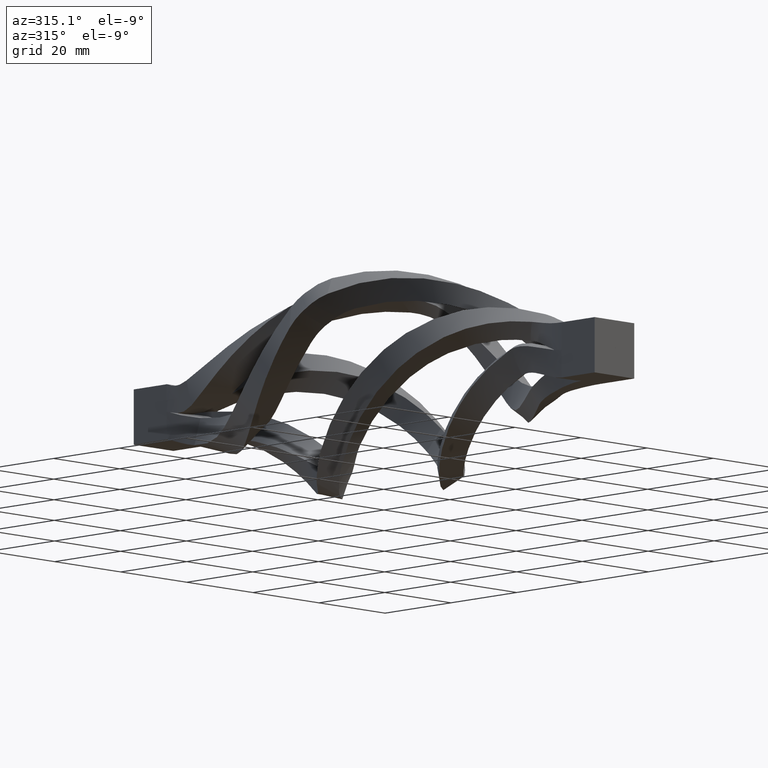
[diagram: clean part render]
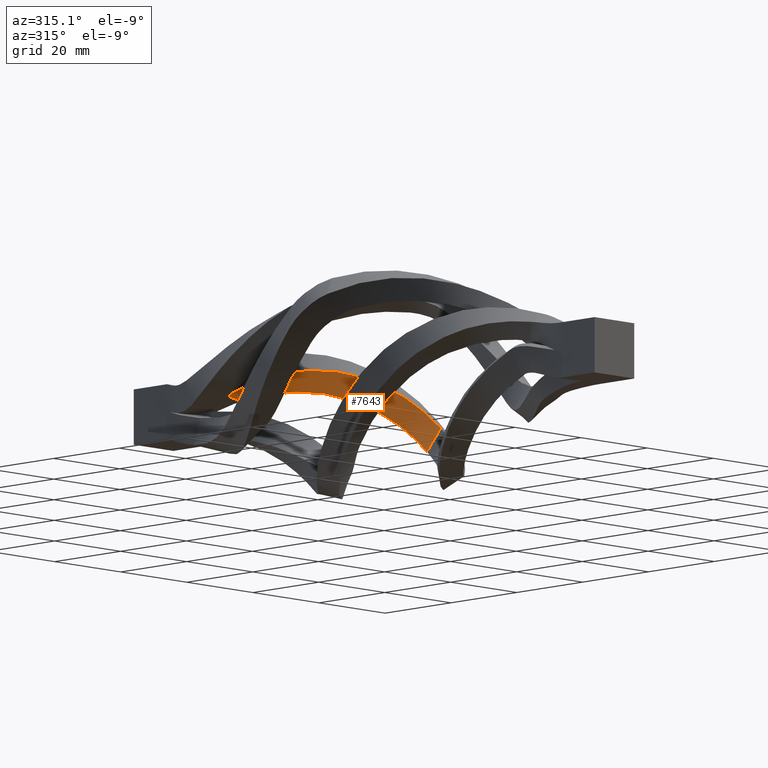
[diagram: same view with one face highlighted and labeled with its STEP entity id]
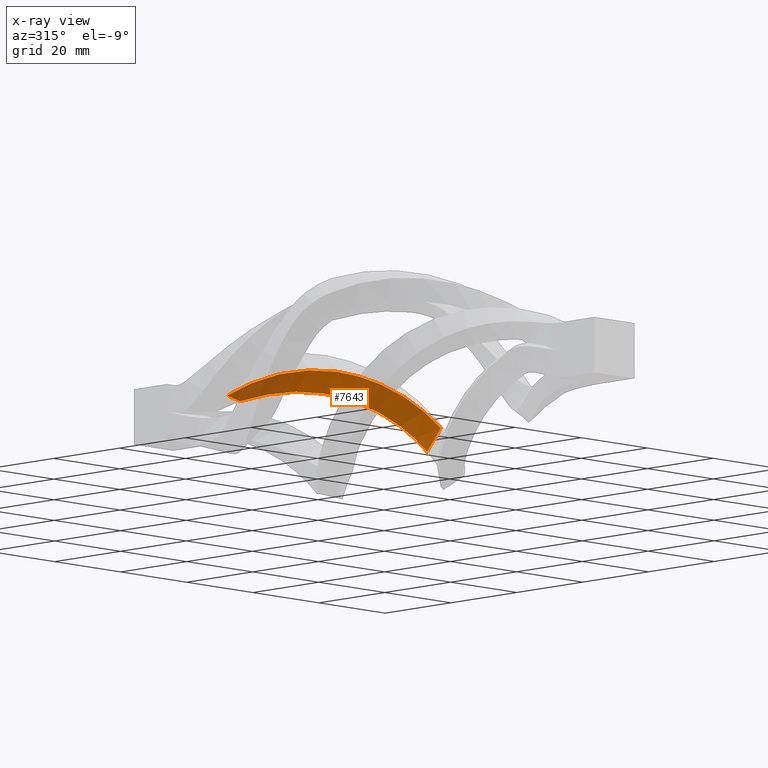
[diagram: x-ray of the same camera — body ghosted, the highlighted face saturated]
A machine part, auxiliary view. The second image highlights one B-rep face of the part: STEP entity #7643.
The next image is the same camera in x-ray: the body ghosted, the highlighted face saturated — about 37% of this face is hidden behind the body in this view.
In plain terms, the highlighted face is a freeform B-spline surface patch.
Its self-contained STEP definition (entity closure, byte-faithful):
#143 = VERTEX_POINT ( 'NONE', #4879 ) ;
#665 = VERTEX_POINT ( 'NONE', #13592 ) ;
#938 = B_SPLINE_CURVE_WITH_KNOTS ( 'NONE', 3,
 ( #5803, #7127, #13695, #1939, #8497, #4939 ),
 .UNSPECIFIED., .F., .F.,
 ( 4, 2, 4 ),
 ( -5.999999999613908612E-08, 0.002976165578653430094, 0.005952391157306856362 ),
 .UNSPECIFIED. ) ;
#977 = CARTESIAN_POINT ( 'NONE',  ( 19.60191930306561403, 2.402593701131205517, -7.140392126459719435 ) ) ;
#1554 = B_SPLINE_CURVE_WITH_KNOTS ( 'NONE', 3,
 ( #13831, #5999, #3354, #12519, #16474, #7313, #2024, #8637, #9892, #977 ),
 .UNSPECIFIED., .F., .F.,
 ( 4, 2, 2, 2, 4 ),
 ( 0.000000000000000000, 0.1250000000000000000, 0.2500000000000000000, 0.3749999999999999445, 0.4549014301359667334 ),
 .UNSPECIFIED. ) ;
#1703 = EDGE_CURVE ( 'NONE', #13280, #13496, #1554, .T. ) ;
#1861 = CARTESIAN_POINT ( 'NONE',  ( 12.10434559238647267, 28.92200941172778883, 2.562942253250505953 ) ) ;
#1939 = CARTESIAN_POINT ( 'NONE',  ( 18.84195471866253513, 3.139902835184435581, -8.818513814883235824 ) ) ;
#1963 = ORIENTED_EDGE ( 'NONE', *, *, #5019, .T. ) ;
#2024 = CARTESIAN_POINT ( 'NONE',  ( 16.10926913521008785, 14.55642898789681539, 2.787919704624151507 ) ) ;
#2361 = CARTESIAN_POINT ( 'NONE',  ( 5.990876172867924510, 49.75534274506112808, 2.481154001424951350 ) ) ;
#3023 = CARTESIAN_POINT ( 'NONE',  ( 5.990876172867924510, 49.75534274506112808, 2.481154001424951350 ) ) ;
#3354 = CARTESIAN_POINT ( 'NONE',  ( 2.191891584705710994, 39.55642898789879780, 5.921840176840939662 ) ) ;
#3529 = CARTESIAN_POINT ( 'NONE',  ( 16.10926913521008785, 14.55642898789681539, 2.787919704624150175 ) ) ;
#3706 = CARTESIAN_POINT ( 'NONE',  ( 17.69712817394394477, 3.928539582183664169, -12.64379073371011764 ) ) ;
#4063 = ORIENTED_EDGE ( 'NONE', *, *, #5353, .T. ) ;
#4294 = CARTESIAN_POINT ( 'NONE',  ( 17.37559370592643759, 4.374255416700081334, -12.29236199166841992 ) ) ;
#4450 = ORIENTED_EDGE ( 'NONE', *, *, #13115, .T. ) ;
#4879 = CARTESIAN_POINT ( 'NONE',  ( 17.37559370592643759, 4.374255416700081334, -12.29236199166841992 ) ) ;
#4939 = CARTESIAN_POINT ( 'NONE',  ( 19.60191930306561403, 2.402593701131205517, -7.140392126459719435 ) ) ;
#5019 = EDGE_CURVE ( 'NONE', #143, #13496, #938, .T. ) ;
#5087 = CARTESIAN_POINT ( 'NONE',  ( 6.150391814995781026, 31.22309565454522584, 7.319350143323577917 ) ) ;
#5353 = EDGE_CURVE ( 'NONE', #665, #143, #11626, .T. ) ;
#5782 = CARTESIAN_POINT ( 'NONE',  ( 7.477032805049990571, 41.42200941173791051, 3.560167904446307929 ) ) ;
#5803 = CARTESIAN_POINT ( 'NONE',  ( 17.37559370592643759, 4.374255416700081334, -12.29236199166841992 ) ) ;
#5999 = CARTESIAN_POINT ( 'NONE',  ( 0.8041598986431560681, 43.72262992926995651, 4.471687671208875337 ) ) ;
#6173 = CARTESIAN_POINT ( 'NONE',  ( 17.91031437934373116, 8.088676078386306756, -9.011769354755092110 ) ) ;
#6282 = CARTESIAN_POINT ( 'NONE',  ( 0.8041598986431575113, 43.72262992926995651, 4.471687671208875337 ) ) ;
#6405 = CARTESIAN_POINT ( 'NONE',  ( 20.05753485017121562, 2.063154654452427295, -7.357579733870252880 ) ) ;
#6823 = EDGE_LOOP ( 'NONE', ( #4063, #1963, #15039, #4450 ) ) ;
#7127 = CARTESIAN_POINT ( 'NONE',  ( 17.74100639962752624, 4.098414970454908435, -11.41224904446549004 ) ) ;
#7313 = CARTESIAN_POINT ( 'NONE',  ( 13.69764861843503567, 18.72309565455534397, 4.987714103488825046 ) ) ;
#7491 = CARTESIAN_POINT ( 'NONE',  ( 7.477032805049990571, 41.42200941173791051, 3.560167904446307929 ) ) ;
#7601 = CARTESIAN_POINT ( 'NONE',  ( 2.191891584705712770, 39.55642898789879780, 5.921840176840937886 ) ) ;
#7643 = ADVANCED_FACE ( 'NONE', ( #8811 ), #16055, .T. ) ;
#7715 = CARTESIAN_POINT ( 'NONE',  ( 13.69764861843965242, 18.72309565455534397, 4.987714103488822381 ) ) ;
#8195 = CARTESIAN_POINT ( 'NONE',  ( 17.68805363085556692, 9.627354338902897268, -7.896205514842320028 ) ) ;
#8250 = CARTESIAN_POINT ( 'NONE',  ( 17.74343094201085336, 7.001963662040213698, -10.04464422549530944 ) ) ;
#8497 = CARTESIAN_POINT ( 'NONE',  ( 19.21598479088189748, 2.783786211045795156, -7.971030441863197424 ) ) ;
#8637 = CARTESIAN_POINT ( 'NONE',  ( 18.72342555336779313, 7.726381316684572731, -2.277140049253454368 ) ) ;
#8811 = FACE_OUTER_BOUND ( 'NONE', #6823, .T. ) ;
#9730 = CARTESIAN_POINT ( 'NONE',  ( 10.32305276607642419, 33.08867607838434566, 3.306979992346438468 ) ) ;
#9892 = CARTESIAN_POINT ( 'NONE',  ( 19.40122354319170128, 5.065748360777138082, -4.610061897611743120 ) ) ;
#11032 = CARTESIAN_POINT ( 'NONE',  ( 15.30509392793214651, 20.58867607839445668, -0.5734308522060622693 ) ) ;
#11544 = CARTESIAN_POINT ( 'NONE',  ( 10.32305276607642419, 33.08867607838434566, 3.306979992346438468 ) ) ;
#11626 = B_SPLINE_CURVE_WITH_KNOTS ( 'NONE', 3,
 ( #3023, #16085, #5782, #9730, #1861, #11032, #14712, #8195, #8250, #4294 ),
 .UNSPECIFIED., .F., .F.,
 ( 4, 2, 2, 2, 4 ),
 ( 0.000000000000000000, 0.1250000000000000000, 0.2500000000000000000, 0.3750000000000000555, 0.4538396521845925458 ),
 .UNSPECIFIED. ) ;
#12023 = DIRECTION ( 'NONE',  ( 0.9481431796756246699, 0.3109300706398524516, -0.06593179814393371196 ) ) ;
#12519 = CARTESIAN_POINT ( 'NONE',  ( 6.150391814995779249, 31.22309565454522584, 7.319350143323579694 ) ) ;
#12697 = CARTESIAN_POINT ( 'NONE',  ( 12.10434559238647267, 28.92200941172778883, 2.562942253250505953 ) ) ;
#12750 = CARTESIAN_POINT ( 'NONE',  ( 15.30509392793214651, 20.58867607839445668, -0.5734308522060622693 ) ) ;
#13115 = EDGE_CURVE ( 'NONE', #13280, #665, #15014, .T. ) ;
#13280 = VERTEX_POINT ( 'NONE', #14945 ) ;
#13496 = VERTEX_POINT ( 'NONE', #14175 ) ;
#13592 = CARTESIAN_POINT ( 'NONE',  ( 5.990876172867924510, 49.75534274506112808, 2.481154001424951350 ) ) ;
#13695 = CARTESIAN_POINT ( 'NONE',  ( 18.10451313908465920, 3.797213193032627832, -10.53924162622121408 ) ) ;
#13831 = CARTESIAN_POINT ( 'NONE',  ( 0.3020170948141765455, 47.88976232122200827, 2.876744790288553677 ) ) ;
#13968 = VECTOR ( 'NONE', #12023, 1000.000000000000114 ) ;
#14001 = CARTESIAN_POINT ( 'NONE',  ( 16.70657156214827310, 16.42200941173593165, -2.969982990981101523 ) ) ;
#14175 = CARTESIAN_POINT ( 'NONE',  ( 19.60191930306561403, 2.402593701131205517, -7.140392126459719435 ) ) ;
#14712 = CARTESIAN_POINT ( 'NONE',  ( 16.70657156214827310, 16.42200941173593165, -2.969982990981101523 ) ) ;
#14945 = CARTESIAN_POINT ( 'NONE',  ( 0.3020170948141765455, 47.88976232122200827, 2.876744790288553677 ) ) ;
#15014 = LINE ( 'NONE', #16907, #13968 ) ;
#15039 = ORIENTED_EDGE ( 'NONE', *, *, #1703, .F. ) ;
#15386 = CARTESIAN_POINT ( 'NONE',  ( 19.29879838400916370, 6.223095654547192268, -3.391953894252852209 ) ) ;
#15437 = CARTESIAN_POINT ( 'NONE',  ( 8.708115169143258782, 27.05642898788867257, 7.250781046707767352 ) ) ;
#15555 = CARTESIAN_POINT ( 'NONE',  ( 6.423871555035023384, 45.58913488375011980, 3.082959138526177423 ) ) ;
#16055 = B_SPLINE_SURFACE_WITH_KNOTS ( 'NONE', 1, 3, ( 
 ( #16821, #6282, #7601, #5087, #15437, #7715, #3529, #15386, #6405, #16758 ),
 ( #2361, #15555, #7491, #11544, #12697, #12750, #14001, #6173, #3706, #16640 ) ),
 .UNSPECIFIED., .F., .F., .F.,
 ( 2, 2 ),
 ( 4, 2, 2, 2, 4 ),
 ( 0.000000000000000000, 1.000000000000000000 ),
 ( 0.000000000000000000, 0.1250000000000000000, 0.2500000000000000000, 0.3750000000000000000, 0.5000000000000000000 ),
 .UNSPECIFIED. ) ;
#16085 = CARTESIAN_POINT ( 'NONE',  ( 6.423871555035023384, 45.58913488375011980, 3.082959138526177423 ) ) ;
#16474 = CARTESIAN_POINT ( 'NONE',  ( 8.708115169147871981, 27.05642898788867257, 7.250781046707768240 ) ) ;
#16640 = CARTESIAN_POINT ( 'NONE',  ( 16.27438286508108689, -0.2446572549388778550, -16.31368727022391241 ) ) ;
#16758 = CARTESIAN_POINT ( 'NONE',  ( 19.46140407676698914, -2.110237678777993064, -11.58478618451146502 ) ) ;
#16821 = CARTESIAN_POINT ( 'NONE',  ( 0.3020170948141780998, 47.88976232122200827, 2.876744790288553677 ) ) ;
#16907 = CARTESIAN_POINT ( 'NONE',  ( 5.990876172867924510, 49.75534274506112808, 2.481154001424951350 ) ) ;